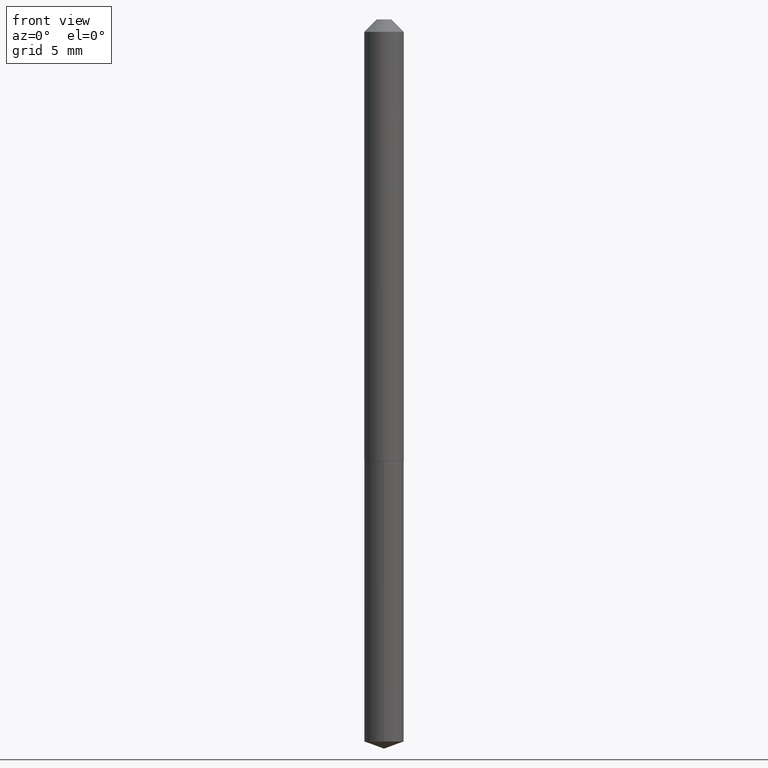
[diagram: clean part render]
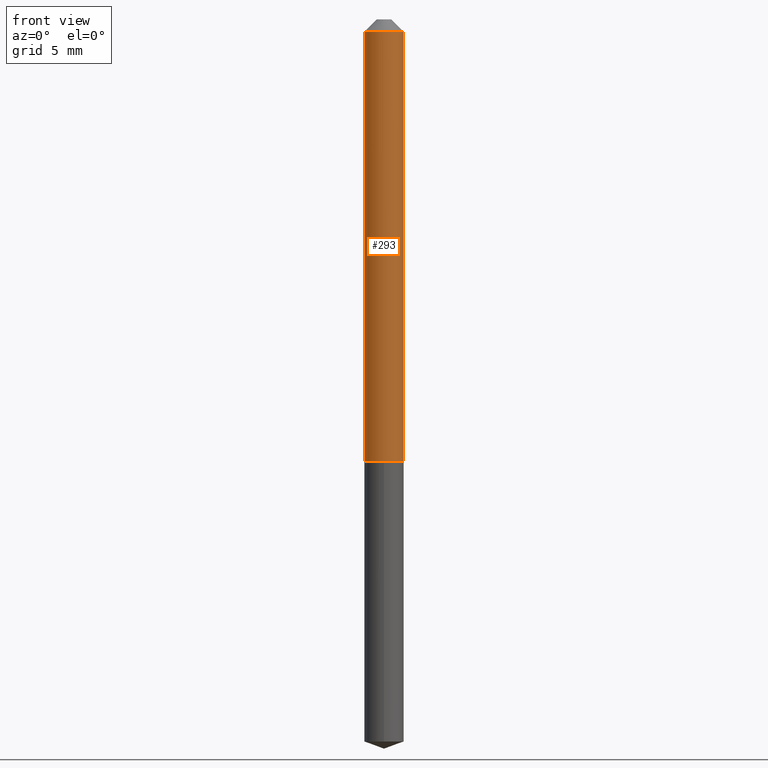
[diagram: same view with one face highlighted and labeled with its STEP entity id]
A machine part, front view. The second image highlights one B-rep face of the part: STEP entity #293.
In plain terms, the highlighted cylindrical surface (edge-blend (fillet) strip) has radius 1.2446 mm, axis along (-0, 0, 1).
Its self-contained STEP definition (entity closure, byte-faithful):
#3 = CARTESIAN_POINT ( 'NONE',  ( 0.04900000000000000883, -4.512739630454761261E-16, -0.03125000000000020123 ) ) ;
#5 = EDGE_CURVE ( 'NONE', #338, #325, #298, .T. ) ;
#16 = CIRCLE ( 'NONE', #117, 0.04900000000000000883 ) ;
#19 = CYLINDRICAL_SURFACE ( 'NONE', #364, 0.04900000000000007822 ) ;
#35 = DIRECTION ( 'NONE',  ( -2.445468806185136597E-29, 3.491481338843145583E-15, 1.000000000000000000 ) ) ;
#47 = ORIENTED_EDGE ( 'NONE', *, *, #110, .T. ) ;
#73 = LINE ( 'NONE', #324, #217 ) ;
#94 = DIRECTION ( 'NONE',  ( -2.445468806185136877E-29, 3.491481338843145188E-15, 1.000000000000000000 ) ) ;
#99 = VECTOR ( 'NONE', #94, 39.37007874015748143 ) ;
#110 = EDGE_CURVE ( 'NONE', #309, #181, #73, .T. ) ;
#117 = AXIS2_PLACEMENT_3D ( 'NONE', #186, #182, #344 ) ;
#150 = DIRECTION ( 'NONE',  ( 1.000000000000000000, -6.982962677686262766E-15, 0.000000000000000000 ) ) ;
#158 = CARTESIAN_POINT ( 'NONE',  ( 2.683902014788188043E-29, -3.831900769380352584E-15, -1.097500000000000142 ) ) ;
#166 = DIRECTION ( 'NONE',  ( -2.445468806185136877E-29, 3.491481338843145188E-15, 1.000000000000000000 ) ) ;
#171 = EDGE_CURVE ( 'NONE', #325, #181, #16, .T. ) ;
#180 = CARTESIAN_POINT ( 'NONE',  ( -0.04900000000000000883, -1.622338840087150061E-15, -0.03125000000000020123 ) ) ;
#181 = VERTEX_POINT ( 'NONE', #3 ) ;
#182 = DIRECTION ( 'NONE',  ( -2.445468806185136597E-29, 3.491481338843145583E-15, 1.000000000000000000 ) ) ;
#186 = CARTESIAN_POINT ( 'NONE',  ( 7.642090019328601786E-31, -1.091087918388490144E-16, -0.03125000000000020123 ) ) ;
#201 = EDGE_CURVE ( 'NONE', #338, #309, #207, .T. ) ;
#203 = EDGE_LOOP ( 'NONE', ( #279, #342, #47, #386 ) ) ;
#207 = CIRCLE ( 'NONE', #310, 0.04900000000000014067 ) ;
#217 = VECTOR ( 'NONE', #166, 39.37007874015748143 ) ;
#234 = CARTESIAN_POINT ( 'NONE',  ( -0.04900000000000007822, 3.481659405224496468E-16, -2.410278194224907734E-30 ) ) ;
#269 = CARTESIAN_POINT ( 'NONE',  ( 0.04900000000000014067, -4.174065940586980694E-15, -1.097500000000000142 ) ) ;
#274 = CARTESIAN_POINT ( 'NONE',  ( 0.000000000000000000, 0.000000000000000000, 0.000000000000000000 ) ) ;
#279 = ORIENTED_EDGE ( 'NONE', *, *, #5, .F. ) ;
#293 = ADVANCED_FACE ( 'NONE', ( #300 ), #19, .T. ) ;
#298 = LINE ( 'NONE', #234, #99 ) ;
#300 = FACE_OUTER_BOUND ( 'NONE', #203, .T. ) ;
#302 = DIRECTION ( 'NONE',  ( 1.000000000000000000, -6.982962677686266711E-15, 4.876176775795936353E-29 ) ) ;
#309 = VERTEX_POINT ( 'NONE', #269 ) ;
#310 = AXIS2_PLACEMENT_3D ( 'NONE', #158, #35, #150 ) ;
#324 = CARTESIAN_POINT ( 'NONE',  ( 0.04900000000000007822, -3.421651712066276171E-16, 2.389326620140012644E-30 ) ) ;
#325 = VERTEX_POINT ( 'NONE', #180 ) ;
#338 = VERTEX_POINT ( 'NONE', #370 ) ;
#342 = ORIENTED_EDGE ( 'NONE', *, *, #201, .T. ) ;
#344 = DIRECTION ( 'NONE',  ( 1.000000000000000000, -6.982962677686267499E-15, 0.000000000000000000 ) ) ;
#353 = DIRECTION ( 'NONE',  ( -2.445468806185136597E-29, 3.491481338843145583E-15, 1.000000000000000000 ) ) ;
#364 = AXIS2_PLACEMENT_3D ( 'NONE', #274, #353, #302 ) ;
#370 = CARTESIAN_POINT ( 'NONE',  ( -0.04900000000000014067, -3.483734828857902394E-15, -1.097500000000000142 ) ) ;
#386 = ORIENTED_EDGE ( 'NONE', *, *, #171, .F. ) ;